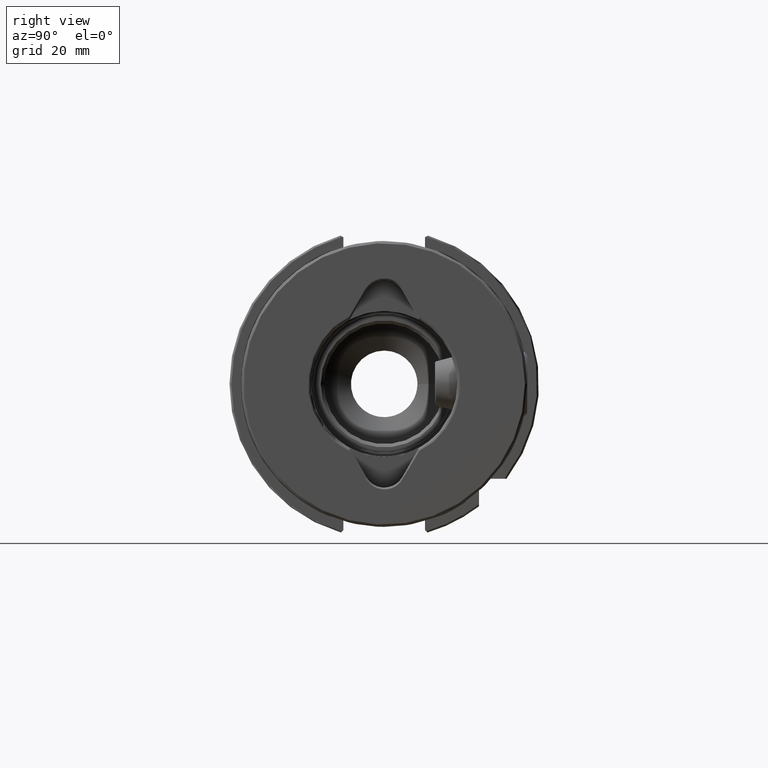
[diagram: clean part render]
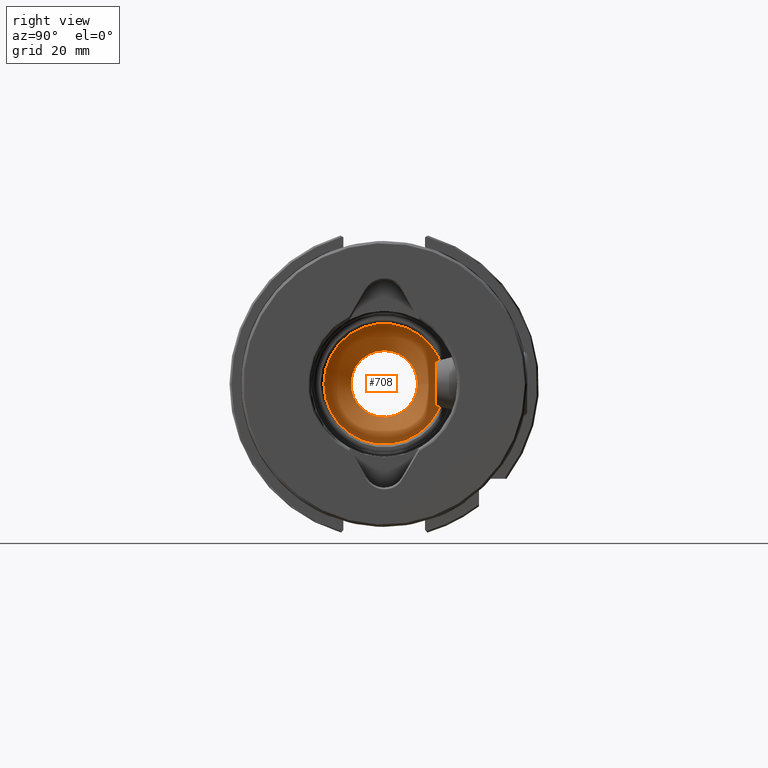
[diagram: same view with one face highlighted and labeled with its STEP entity id]
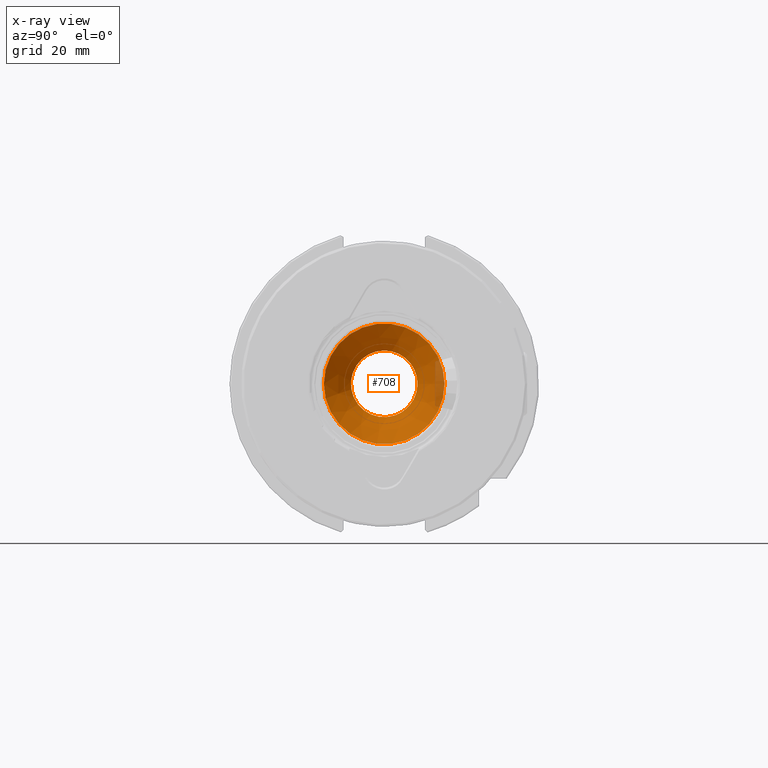
[diagram: x-ray of the same camera — body ghosted, the highlighted face saturated]
A machine part, right view. The second image highlights one B-rep face of the part: STEP entity #708.
The next image is the same camera in x-ray: the body ghosted, the highlighted face saturated — about 5% of this face is hidden behind the body in this view.
In plain terms, the highlighted conical surface has half-angle 59 deg.
Its self-contained STEP definition (entity closure, byte-faithful):
#97 = CARTESIAN_POINT ( 'NONE',  ( -8.607315261734305200, -7.536020294172281100E-016, 0.0000000000000000000 ) ) ;
#115 = EDGE_LOOP ( 'NONE', ( #843 ) ) ;
#332 = AXIS2_PLACEMENT_3D ( 'NONE', #97, #1155, #2739 ) ;
#377 = DIRECTION ( 'NONE',  ( -1.141265444721584000E-016, 1.000000000000000000, 0.0000000000000000000 ) ) ;
#411 = DIRECTION ( 'NONE',  ( -1.652117596168388000E-016, 1.000000000000000000, 0.0000000000000000000 ) ) ;
#474 = CIRCLE ( 'NONE', #1311, 18.99999999999999300 ) ;
#542 = CIRCLE ( 'NONE', #4303, 10.49999999999999800 ) ;
#708 = ADVANCED_FACE ( 'NONE', ( #4557, #1984 ), #4689, .F. ) ;
#843 = ORIENTED_EDGE ( 'NONE', *, *, #2267, .T. ) ;
#1155 = DIRECTION ( 'NONE',  ( 1.000000000000000000, 1.192422072363500000E-016, -0.0000000000000000000 ) ) ;
#1311 = AXIS2_PLACEMENT_3D ( 'NONE', #3456, #3826, #377 ) ;
#1878 = CARTESIAN_POINT ( 'NONE',  ( -8.607315261734306900, 10.49999999999999800, 0.0000000000000000000 ) ) ;
#1984 = FACE_BOUND ( 'NONE', #4833, .T. ) ;
#2267 = EDGE_CURVE ( 'NONE', #2356, #2356, #474, .T. ) ;
#2356 = VERTEX_POINT ( 'NONE', #2672 ) ;
#2640 = VERTEX_POINT ( 'NONE', #1878 ) ;
#2672 = CARTESIAN_POINT ( 'NONE',  ( -3.499999999999991600, 18.99999999999999300, 0.0000000000000000000 ) ) ;
#2739 = DIRECTION ( 'NONE',  ( -1.652117596168388000E-016, 1.000000000000000000, 0.0000000000000000000 ) ) ;
#3117 = CARTESIAN_POINT ( 'NONE',  ( -8.607315261734305200, -7.536020294172281100E-016, 0.0000000000000000000 ) ) ;
#3395 = ORIENTED_EDGE ( 'NONE', *, *, #3956, .F. ) ;
#3446 = DIRECTION ( 'NONE',  ( 1.000000000000000000, 1.192422072363500000E-016, -0.0000000000000000000 ) ) ;
#3456 = CARTESIAN_POINT ( 'NONE',  ( -3.499999999999989300, -1.445944845561314700E-016, 0.0000000000000000000 ) ) ;
#3826 = DIRECTION ( 'NONE',  ( 1.000000000000000000, 1.192422072363500000E-016, -0.0000000000000000000 ) ) ;
#3956 = EDGE_CURVE ( 'NONE', #2640, #2640, #542, .T. ) ;
#4303 = AXIS2_PLACEMENT_3D ( 'NONE', #3117, #3446, #411 ) ;
#4557 = FACE_OUTER_BOUND ( 'NONE', #115, .T. ) ;
#4689 = CONICAL_SURFACE ( 'NONE', #332, 10.49999999999999800, 1.029744258676649600 ) ;
#4833 = EDGE_LOOP ( 'NONE', ( #3395 ) ) ;